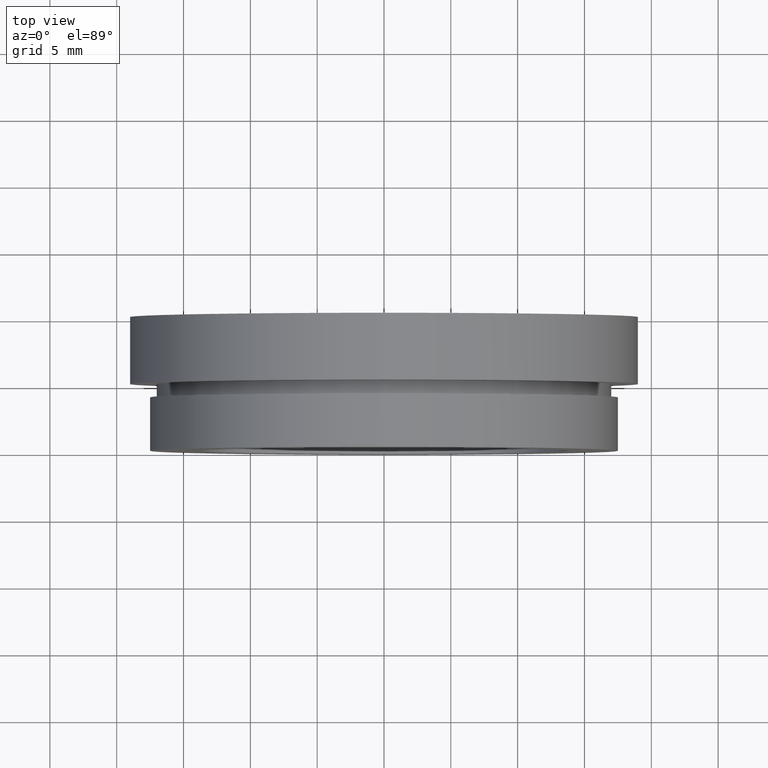
[diagram: clean part render]
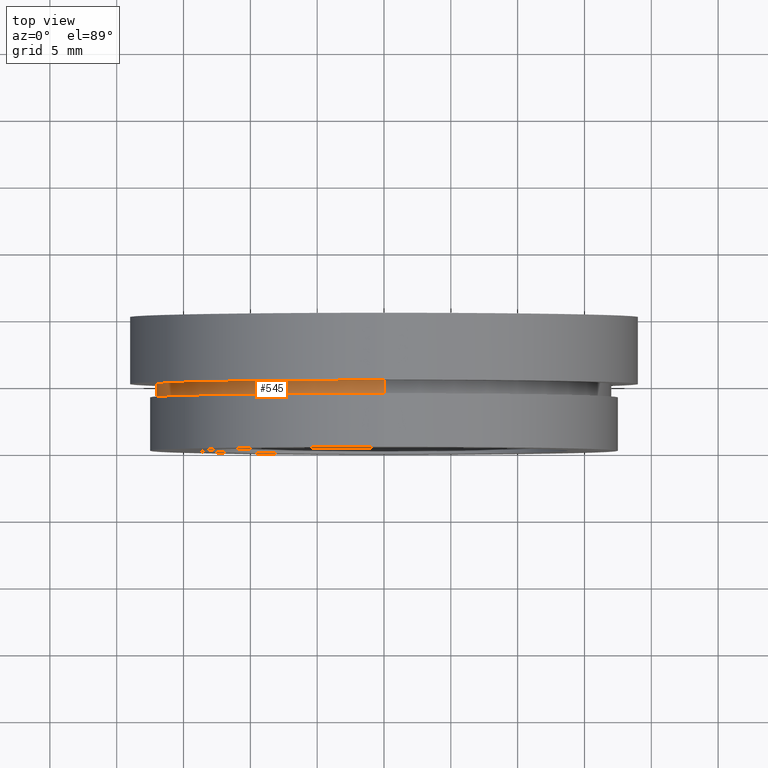
[diagram: same view with one face highlighted and labeled with its STEP entity id]
A machine part, top view. The second image highlights one B-rep face of the part: STEP entity #545.
In plain terms, the highlighted cylindrical surface (partial cylindrical patch) has radius 17 mm, axis along (-0, 1, -0).
Its self-contained STEP definition (entity closure, byte-faithful):
#19 = CARTESIAN_POINT ( 'NONE',  ( 0.0000000000000000000, 5.000000000000000900, 0.0000000000000000000 ) ) ;
#22 = DIRECTION ( 'NONE',  ( 0.0000000000000000000, 0.0000000000000000000, 1.000000000000000000 ) ) ;
#33 = VERTEX_POINT ( 'NONE', #484 ) ;
#46 = LINE ( 'NONE', #444, #361 ) ;
#49 = EDGE_CURVE ( 'NONE', #539, #33, #46, .T. ) ;
#52 = AXIS2_PLACEMENT_3D ( 'NONE', #19, #522, #22 ) ;
#89 = DIRECTION ( 'NONE',  ( -0.0000000000000000000, 1.000000000000000000, -0.0000000000000000000 ) ) ;
#100 = ORIENTED_EDGE ( 'NONE', *, *, #500, .T. ) ;
#102 = EDGE_CURVE ( 'NONE', #188, #33, #200, .T. ) ;
#110 = CARTESIAN_POINT ( 'NONE',  ( 2.081899558550500300E-015, 13.74468085106383300, -17.00000000000000000 ) ) ;
#114 = EDGE_CURVE ( 'NONE', #546, #188, #396, .T. ) ;
#115 = EDGE_LOOP ( 'NONE', ( #345, #100, #620, #426 ) ) ;
#188 = VERTEX_POINT ( 'NONE', #274 ) ;
#200 = CIRCLE ( 'NONE', #52, 17.00000000000000000 ) ;
#216 = FACE_OUTER_BOUND ( 'NONE', #115, .T. ) ;
#232 = CARTESIAN_POINT ( 'NONE',  ( 0.0000000000000000000, 4.000000000000000000, 17.00000000000000000 ) ) ;
#274 = CARTESIAN_POINT ( 'NONE',  ( 2.081899558550500300E-015, 5.000000000000000900, -17.00000000000000000 ) ) ;
#289 = DIRECTION ( 'NONE',  ( -0.0000000000000000000, 1.000000000000000000, -0.0000000000000000000 ) ) ;
#305 = DIRECTION ( 'NONE',  ( 0.0000000000000000000, 0.0000000000000000000, 1.000000000000000000 ) ) ;
#314 = CIRCLE ( 'NONE', #543, 17.00000000000000000 ) ;
#321 = VECTOR ( 'NONE', #596, 1000.000000000000000 ) ;
#345 = ORIENTED_EDGE ( 'NONE', *, *, #114, .F. ) ;
#361 = VECTOR ( 'NONE', #289, 1000.000000000000000 ) ;
#396 = LINE ( 'NONE', #110, #321 ) ;
#416 = DIRECTION ( 'NONE',  ( 0.0000000000000000000, 0.0000000000000000000, 1.000000000000000000 ) ) ;
#426 = ORIENTED_EDGE ( 'NONE', *, *, #102, .F. ) ;
#444 = CARTESIAN_POINT ( 'NONE',  ( 0.0000000000000000000, 13.74468085106383300, 17.00000000000000000 ) ) ;
#466 = AXIS2_PLACEMENT_3D ( 'NONE', #595, #89, #305 ) ;
#484 = CARTESIAN_POINT ( 'NONE',  ( 0.0000000000000000000, 5.000000000000000900, 17.00000000000000000 ) ) ;
#491 = CYLINDRICAL_SURFACE ( 'NONE', #466, 17.00000000000000000 ) ;
#500 = EDGE_CURVE ( 'NONE', #546, #539, #314, .T. ) ;
#516 = CARTESIAN_POINT ( 'NONE',  ( 0.0000000000000000000, 4.000000000000000000, 0.0000000000000000000 ) ) ;
#522 = DIRECTION ( 'NONE',  ( -0.0000000000000000000, 1.000000000000000000, -0.0000000000000000000 ) ) ;
#539 = VERTEX_POINT ( 'NONE', #232 ) ;
#543 = AXIS2_PLACEMENT_3D ( 'NONE', #516, #571, #416 ) ;
#545 = ADVANCED_FACE ( 'NONE', ( #216 ), #491, .T. ) ;
#546 = VERTEX_POINT ( 'NONE', #598 ) ;
#571 = DIRECTION ( 'NONE',  ( -0.0000000000000000000, 1.000000000000000000, -0.0000000000000000000 ) ) ;
#595 = CARTESIAN_POINT ( 'NONE',  ( 0.0000000000000000000, 13.74468085106383300, 0.0000000000000000000 ) ) ;
#596 = DIRECTION ( 'NONE',  ( -0.0000000000000000000, 1.000000000000000000, -0.0000000000000000000 ) ) ;
#598 = CARTESIAN_POINT ( 'NONE',  ( 2.081899558550500300E-015, 4.000000000000000000, -17.00000000000000000 ) ) ;
#620 = ORIENTED_EDGE ( 'NONE', *, *, #49, .T. ) ;